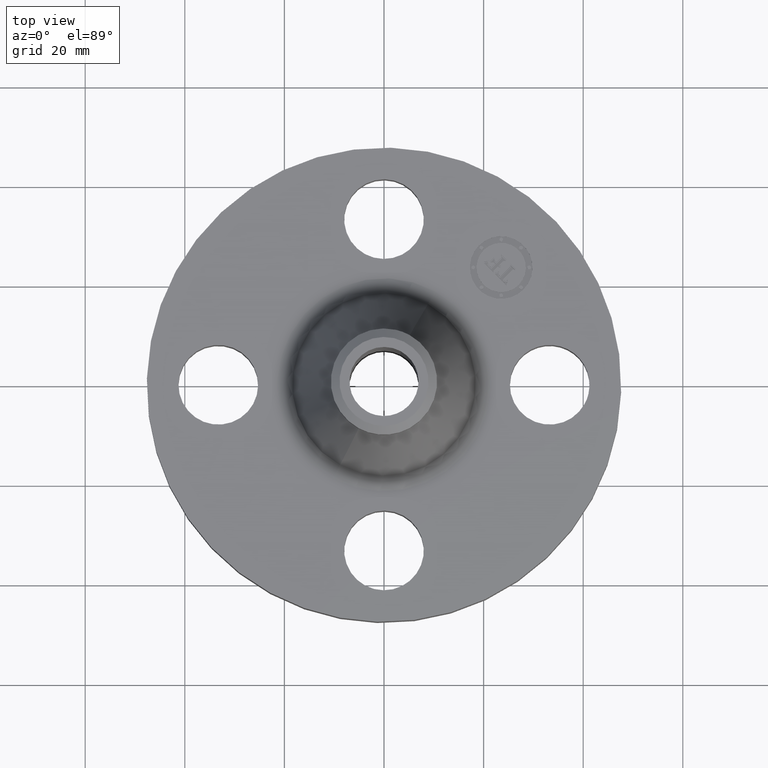
[diagram: clean part render]
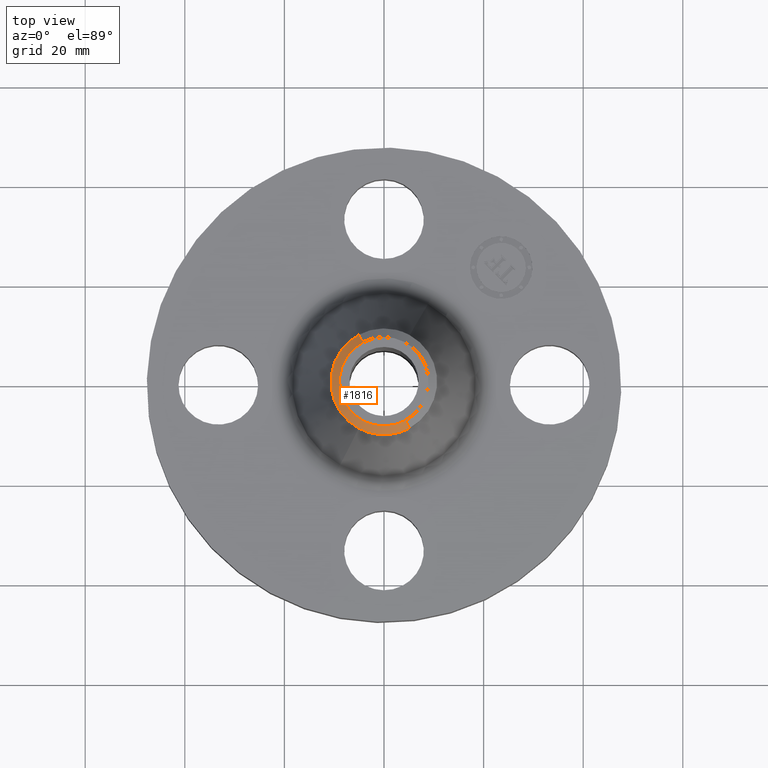
[diagram: same view with one face highlighted and labeled with its STEP entity id]
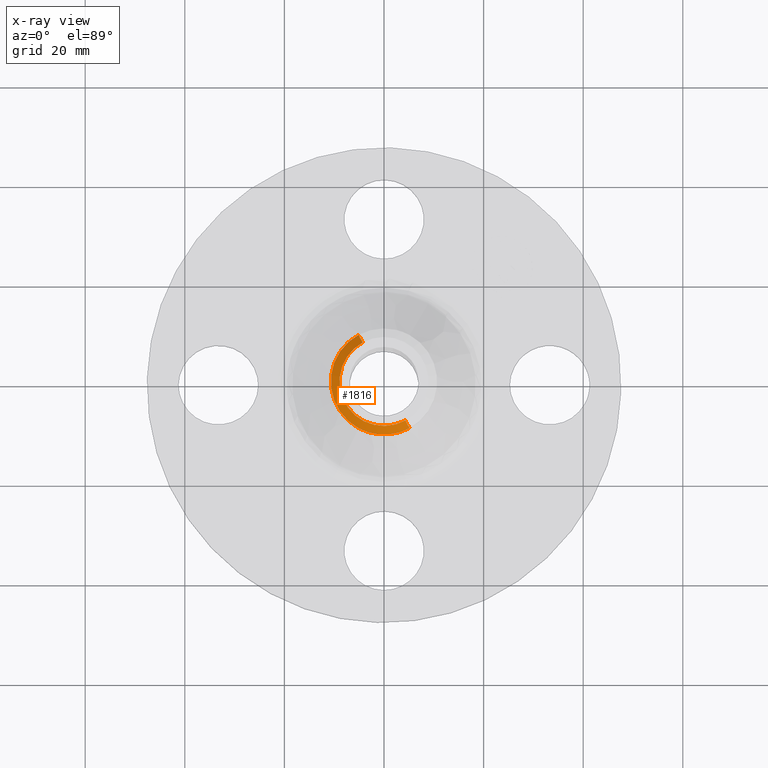
[diagram: x-ray of the same camera — body ghosted, the highlighted face saturated]
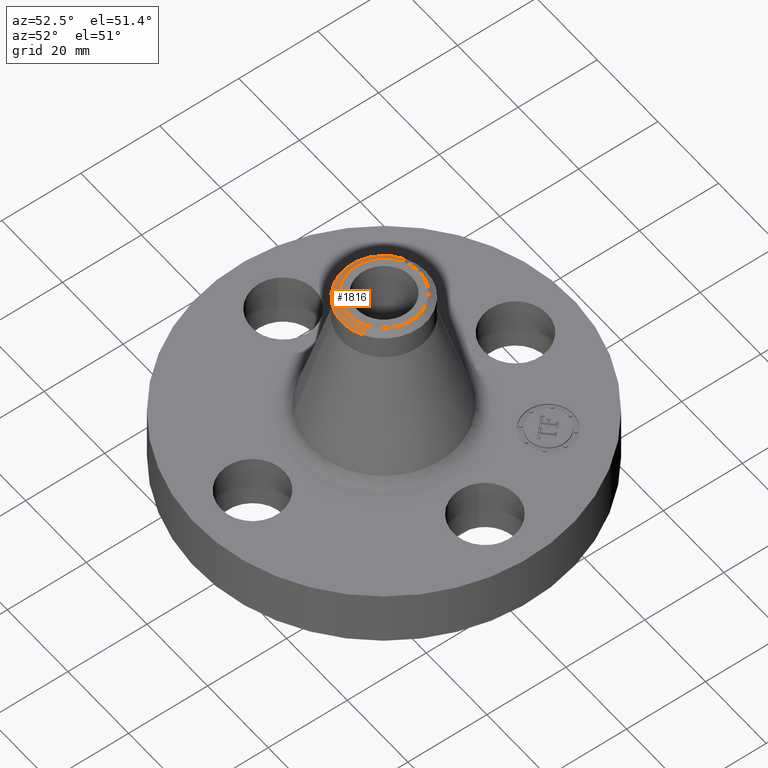
[diagram: same view with one face highlighted and labeled with its STEP entity id]
A machine part, top view. The second image highlights one B-rep face of the part: STEP entity #1816.
The next image is the same camera in x-ray: the body ghosted, the highlighted face saturated — about 0% of this face is hidden behind the body in this view.
A second angle (auxiliary view) of the same face is appended — the face is thin or edge-on in the first view.
In plain terms, the highlighted conical surface has half-angle 52.5 deg.
Its self-contained STEP definition (entity closure, byte-faithful):
#1142=AXIS2_PLACEMENT_3D('Circle Axis2P3D',#1140,#1141,$) ;
#1183=AXIS2_PLACEMENT_3D('Circle Axis2P3D',#1181,#1182,$) ;
#1775=AXIS2_PLACEMENT_3D('Circle Axis2P3D',#1773,#1774,$) ;
#1797=AXIS2_PLACEMENT_3D('Cone Axis2P3D',#1794,#1795,#1796) ;
#1137=CARTESIAN_POINT('Vertex',(-0.201358726215,-0.368584675996,2.00762238062)) ;
#1140=CARTESIAN_POINT('Axis2P3D Location',(0.,0.,2.00762238062)) ;
#1144=CARTESIAN_POINT('Vertex',(-0.201358726215,0.368584675995,2.00762238062)) ;
#1178=CARTESIAN_POINT('Vertex',(0.201358726215,-0.368584675995,2.00762238062)) ;
#1181=CARTESIAN_POINT('Axis2P3D Location',(0.,0.,2.00762238062)) ;
#1768=CARTESIAN_POINT('Vertex',(0.168633214449,-0.308681028522,2.06000000001)) ;
#1770=CARTESIAN_POINT('Vertex',(-0.168633214449,0.308681028522,2.06000000001)) ;
#1773=CARTESIAN_POINT('Axis2P3D Location',(-1.28117638982E-011,-2.58255009678E-011,2.06000000001)) ;
#1794=CARTESIAN_POINT('Axis2P3D Location',(0.,0.,2.06000000001)) ;
#1799=CARTESIAN_POINT('Line Origine',(0.18499597033,-0.338632852255,2.03381119033)) ;
#1804=CARTESIAN_POINT('Line Origine',(-0.18499597033,0.338632852255,2.03381119033)) ;
#1141=DIRECTION('Axis2P3D Direction',(-0.,0.,-0.0393700787402)) ;
#1182=DIRECTION('Axis2P3D Direction',(-0.,0.,-0.0393700787402)) ;
#1774=DIRECTION('Axis2P3D Direction',(0.,0.,-0.0393700787402)) ;
#1795=DIRECTION('Axis2P3D Direction',(-0.,-0.,-0.0393700787402)) ;
#1796=DIRECTION('Axis2P3D XDirection',(0.0188750212049,-0.0345504945626,0.)) ;
#1800=DIRECTION('Vector Direction',(0.014974561121,-0.02741075027,-0.023966985394)) ;
#1805=DIRECTION('Vector Direction',(-0.014974561121,0.02741075027,-0.023966985394)) ;
#1801=VECTOR('Line Direction',#1800,0.0393700787402) ;
#1806=VECTOR('Line Direction',#1805,0.0393700787402) ;
#1810=ORIENTED_EDGE('',*,*,#1803,.F.) ;
#1811=ORIENTED_EDGE('',*,*,#1777,.F.) ;
#1812=ORIENTED_EDGE('',*,*,#1808,.T.) ;
#1813=ORIENTED_EDGE('',*,*,#1146,.T.) ;
#1814=ORIENTED_EDGE('',*,*,#1185,.F.) ;
#1816=ADVANCED_FACE('PartBody',(#1815),#1798,.T.) ;
#1143=CIRCLE('generated circle',#1142,0.420000000002) ;
#1184=CIRCLE('generated circle',#1183,0.420000000002) ;
#1776=CIRCLE('generated circle',#1775,0.351740157477) ;
#1798=CONICAL_SURFACE('Cone',#1797,0.351740157481,0.916297857297) ;
#1146=EDGE_CURVE('',#1145,#1138,#1143,.F.) ;
#1185=EDGE_CURVE('',#1179,#1138,#1184,.T.) ;
#1777=EDGE_CURVE('',#1771,#1769,#1776,.F.) ;
#1803=EDGE_CURVE('',#1769,#1179,#1802,.T.) ;
#1808=EDGE_CURVE('',#1771,#1145,#1807,.T.) ;
#1809=EDGE_LOOP('',(#1810,#1811,#1812,#1813,#1814)) ;
#1815=FACE_OUTER_BOUND('',#1809,.T.) ;
#1802=LINE('Line',#1799,#1801) ;
#1807=LINE('Line',#1804,#1806) ;
#1138=VERTEX_POINT('',#1137) ;
#1145=VERTEX_POINT('',#1144) ;
#1179=VERTEX_POINT('',#1178) ;
#1769=VERTEX_POINT('',#1768) ;
#1771=VERTEX_POINT('',#1770) ;